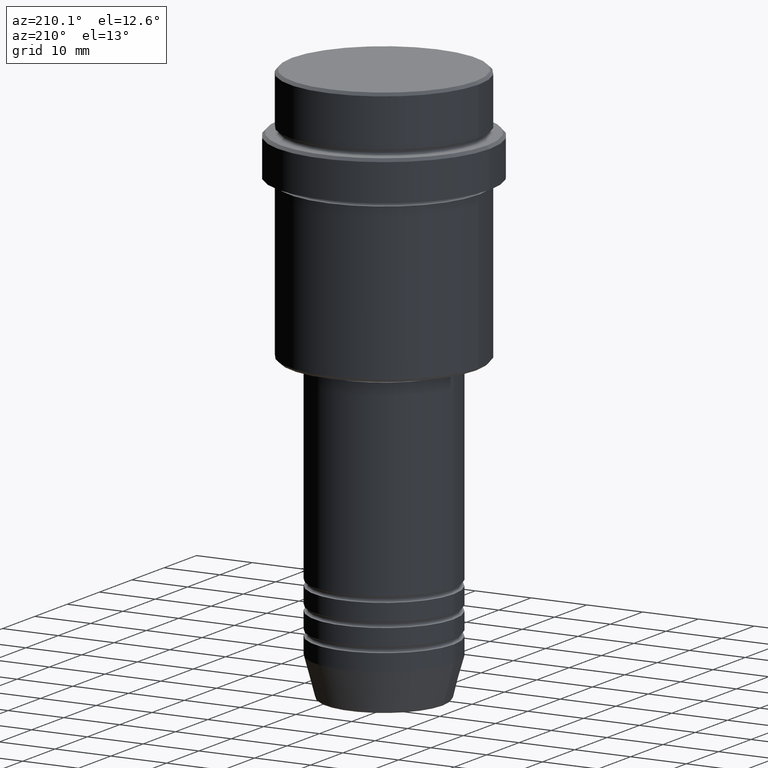
[diagram: clean part render]
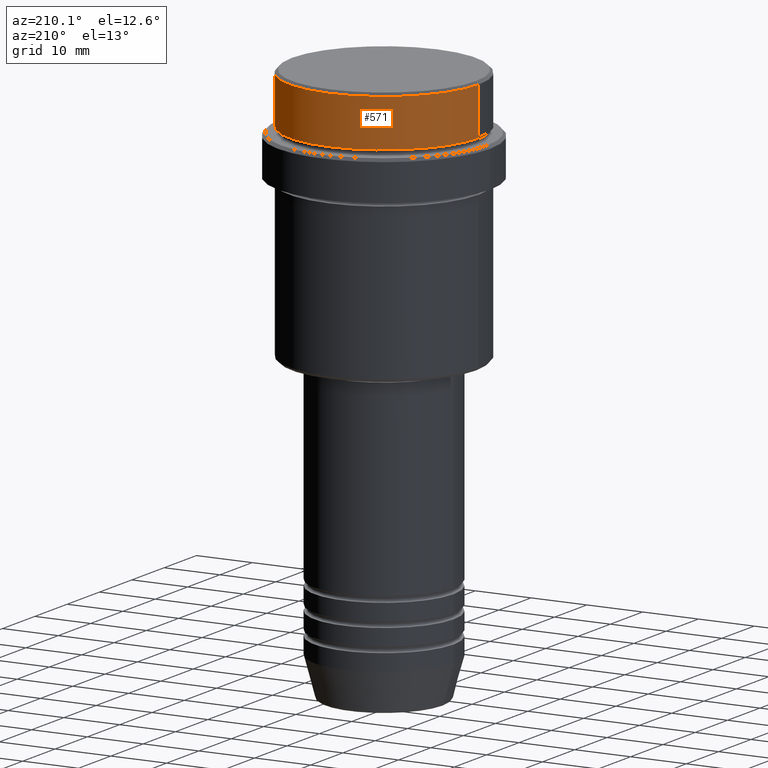
[diagram: same view with one face highlighted and labeled with its STEP entity id]
A machine part, auxiliary view. The second image highlights one B-rep face of the part: STEP entity #571.
In plain terms, the highlighted cylindrical surface (partial cylindrical patch) has radius 17 mm, axis along (-0, -0, 1).
Its self-contained STEP definition (entity closure, byte-faithful):
#40 = CARTESIAN_POINT ( 'NONE',  ( -16.99999999999999645, 2.081899558550499885E-15, 0.000000000000000000 ) ) ;
#68 = CARTESIAN_POINT ( 'NONE',  ( -16.99999999999999645, 2.081899558550499885E-15, -0.5000000000000073275 ) ) ;
#73 = FACE_OUTER_BOUND ( 'NONE', #248, .T. ) ;
#74 = AXIS2_PLACEMENT_3D ( 'NONE', #958, #312, #1180 ) ;
#162 = CYLINDRICAL_SURFACE ( 'NONE', #1078, 16.99999999999999645 ) ;
#203 = CARTESIAN_POINT ( 'NONE',  ( 0.000000000000000000, 0.000000000000000000, -0.5000000000000073275 ) ) ;
#248 = EDGE_LOOP ( 'NONE', ( #578, #889, #992, #557 ) ) ;
#249 = DIRECTION ( 'NONE',  ( -0.000000000000000000, -0.000000000000000000, 1.000000000000000000 ) ) ;
#311 = EDGE_CURVE ( 'NONE', #1308, #529, #711, .T. ) ;
#312 = DIRECTION ( 'NONE',  ( -0.000000000000000000, -0.000000000000000000, 1.000000000000000000 ) ) ;
#336 = LINE ( 'NONE', #1085, #1011 ) ;
#379 = DIRECTION ( 'NONE',  ( -0.000000000000000000, -0.000000000000000000, 1.000000000000000000 ) ) ;
#390 = CIRCLE ( 'NONE', #74, 16.99999999999999289 ) ;
#484 = CIRCLE ( 'NONE', #877, 16.99999999999999645 ) ;
#491 = CARTESIAN_POINT ( 'NONE',  ( 0.000000000000000000, 0.000000000000000000, 0.000000000000000000 ) ) ;
#529 = VERTEX_POINT ( 'NONE', #68 ) ;
#557 = ORIENTED_EDGE ( 'NONE', *, *, #678, .F. ) ;
#571 = ADVANCED_FACE ( 'NONE', ( #73 ), #162, .T. ) ;
#578 = ORIENTED_EDGE ( 'NONE', *, *, #730, .T. ) ;
#581 = VECTOR ( 'NONE', #249, 1000.000000000000000 ) ;
#585 = CARTESIAN_POINT ( 'NONE',  ( -16.99999999999999289, 2.081899558550499885E-15, -8.999999999999998224 ) ) ;
#637 = DIRECTION ( 'NONE',  ( 0.000000000000000000, 0.000000000000000000, -1.000000000000000000 ) ) ;
#678 = EDGE_CURVE ( 'NONE', #1219, #776, #336, .T. ) ;
#711 = LINE ( 'NONE', #40, #581 ) ;
#718 = CARTESIAN_POINT ( 'NONE',  ( 16.99999999999999289, 0.000000000000000000, -8.999999999999998224 ) ) ;
#730 = EDGE_CURVE ( 'NONE', #1219, #1308, #390, .T. ) ;
#776 = VERTEX_POINT ( 'NONE', #1213 ) ;
#831 = DIRECTION ( 'NONE',  ( 1.000000000000000000, 0.000000000000000000, 0.000000000000000000 ) ) ;
#877 = AXIS2_PLACEMENT_3D ( 'NONE', #203, #637, #955 ) ;
#889 = ORIENTED_EDGE ( 'NONE', *, *, #311, .T. ) ;
#955 = DIRECTION ( 'NONE',  ( 1.000000000000000000, 0.000000000000000000, 0.000000000000000000 ) ) ;
#958 = CARTESIAN_POINT ( 'NONE',  ( 0.000000000000000000, 0.000000000000000000, -8.999999999999998224 ) ) ;
#992 = ORIENTED_EDGE ( 'NONE', *, *, #1236, .T. ) ;
#1011 = VECTOR ( 'NONE', #1077, 1000.000000000000000 ) ;
#1077 = DIRECTION ( 'NONE',  ( -0.000000000000000000, -0.000000000000000000, 1.000000000000000000 ) ) ;
#1078 = AXIS2_PLACEMENT_3D ( 'NONE', #491, #379, #831 ) ;
#1085 = CARTESIAN_POINT ( 'NONE',  ( 16.99999999999999645, 0.000000000000000000, 0.000000000000000000 ) ) ;
#1180 = DIRECTION ( 'NONE',  ( 1.000000000000000000, 0.000000000000000000, 0.000000000000000000 ) ) ;
#1213 = CARTESIAN_POINT ( 'NONE',  ( 16.99999999999999645, 0.000000000000000000, -0.5000000000000073275 ) ) ;
#1219 = VERTEX_POINT ( 'NONE', #718 ) ;
#1236 = EDGE_CURVE ( 'NONE', #529, #776, #484, .T. ) ;
#1308 = VERTEX_POINT ( 'NONE', #585 ) ;